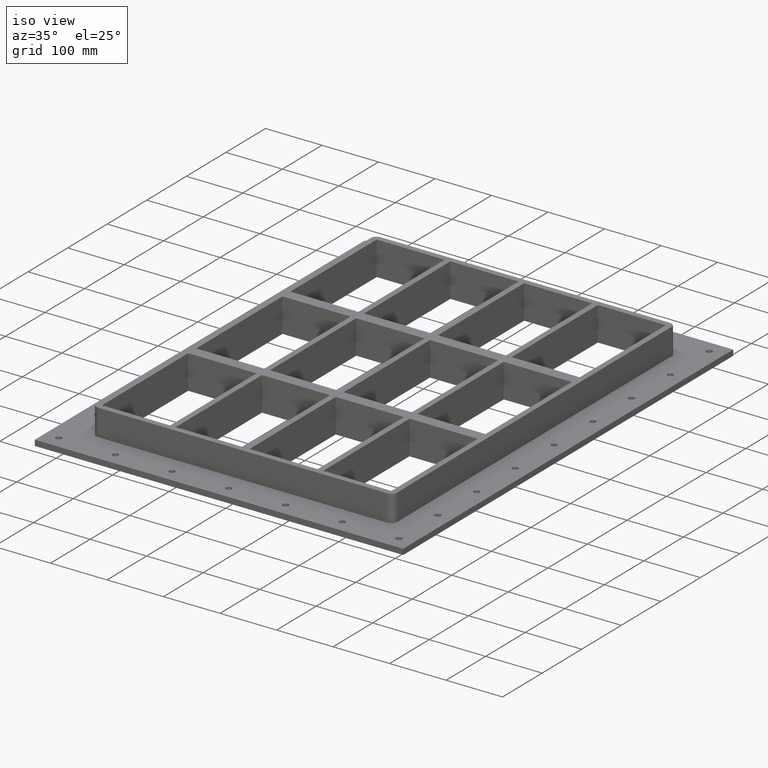
[diagram: clean part render]
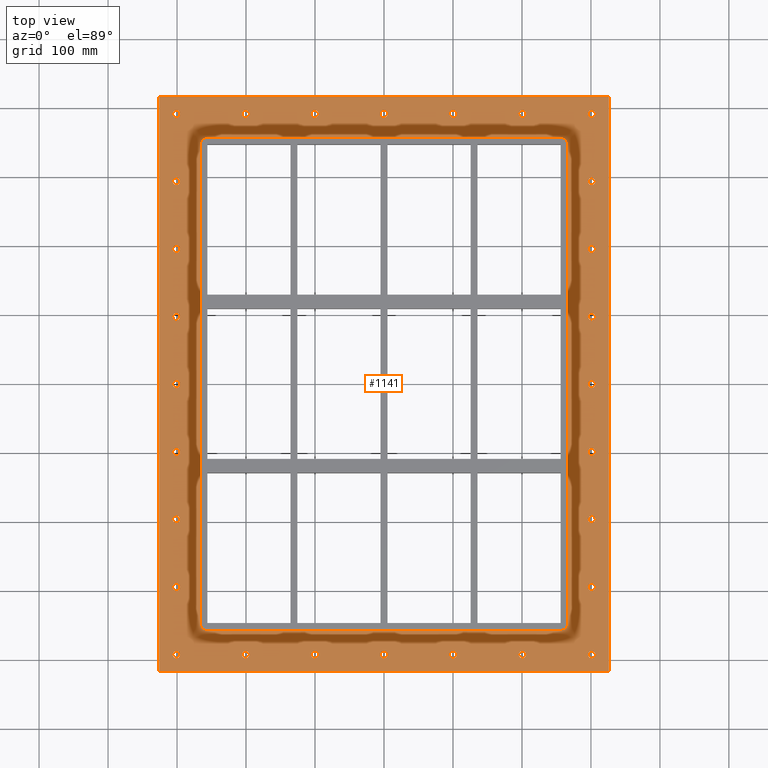
[diagram: tour spotlight — one face highlighted and labeled with its STEP entity id]
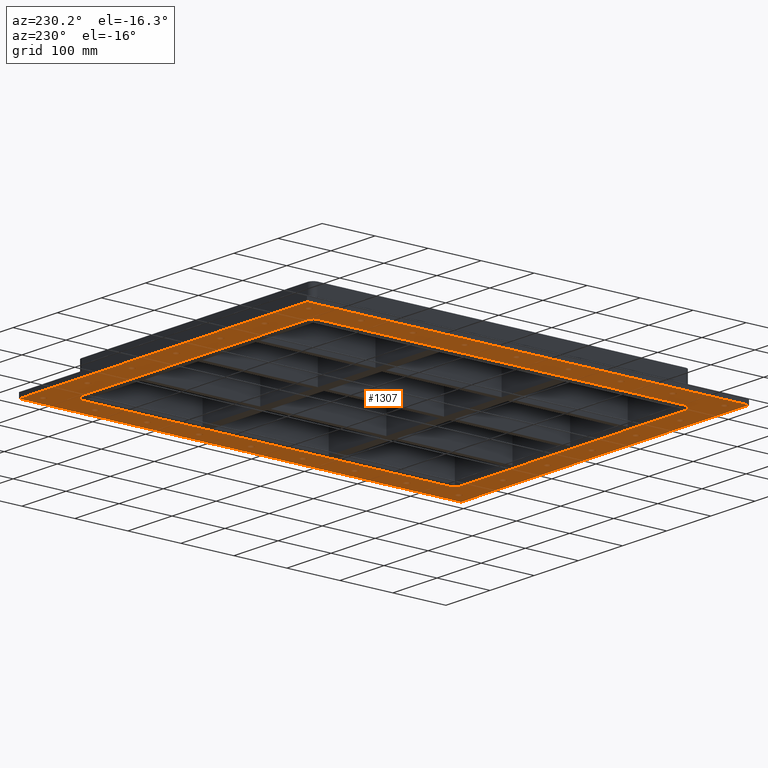
[diagram: tour spotlight — one face highlighted and labeled with its STEP entity id]
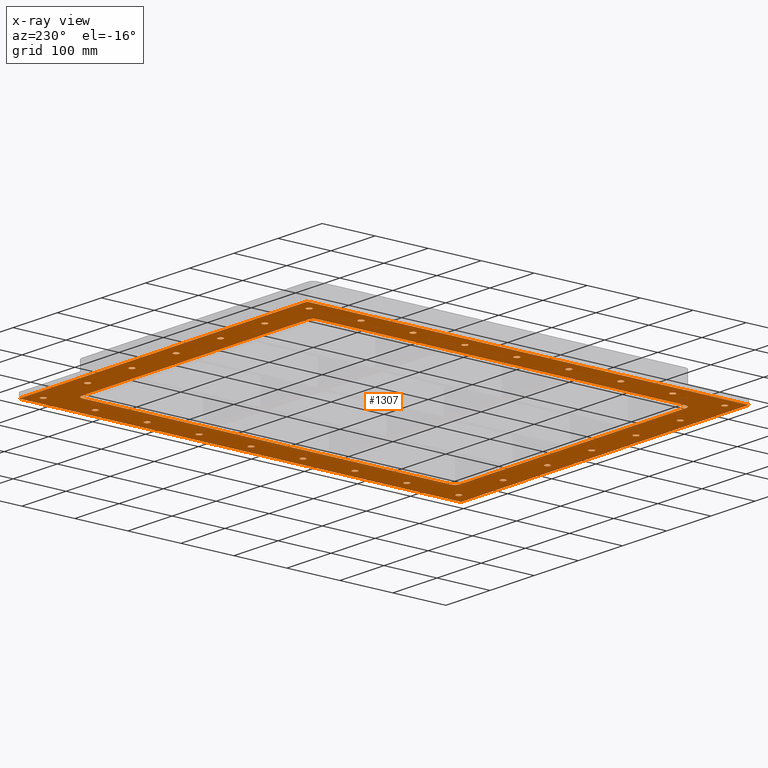
[diagram: x-ray of the same camera — body ghosted, this tour face saturated]
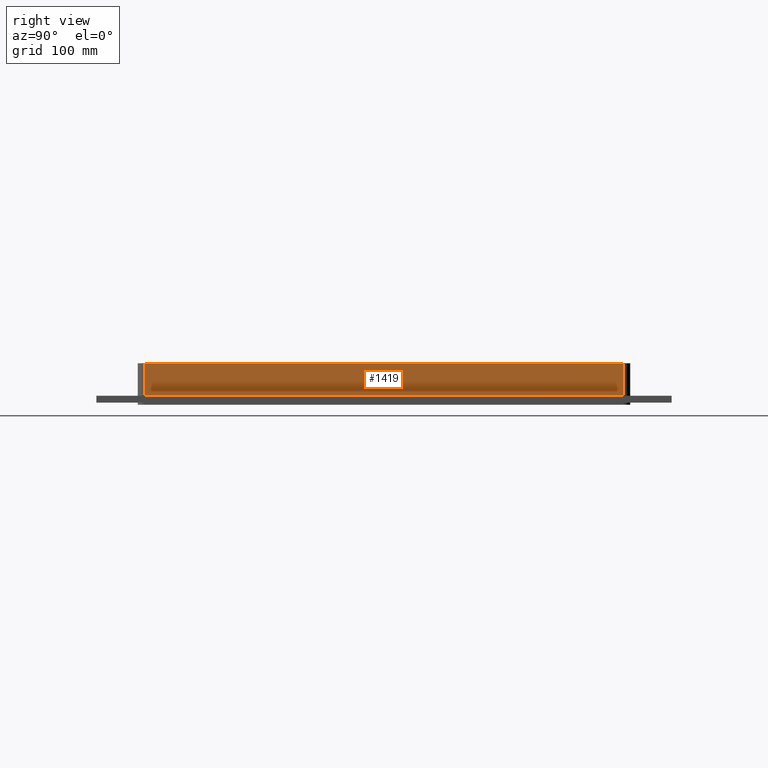
[diagram: tour spotlight — one face highlighted and labeled with its STEP entity id]
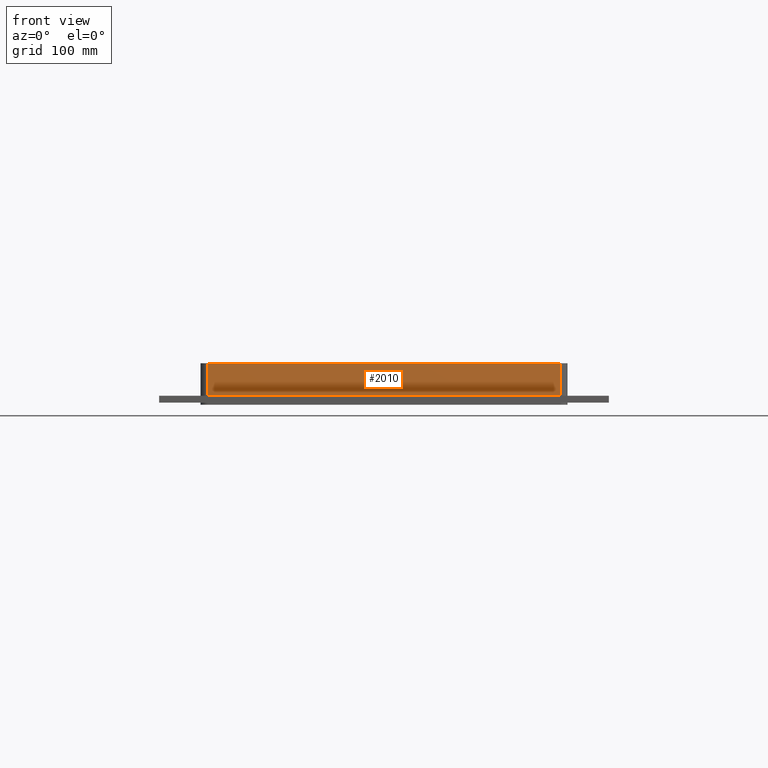
[diagram: tour spotlight — one face highlighted and labeled with its STEP entity id]
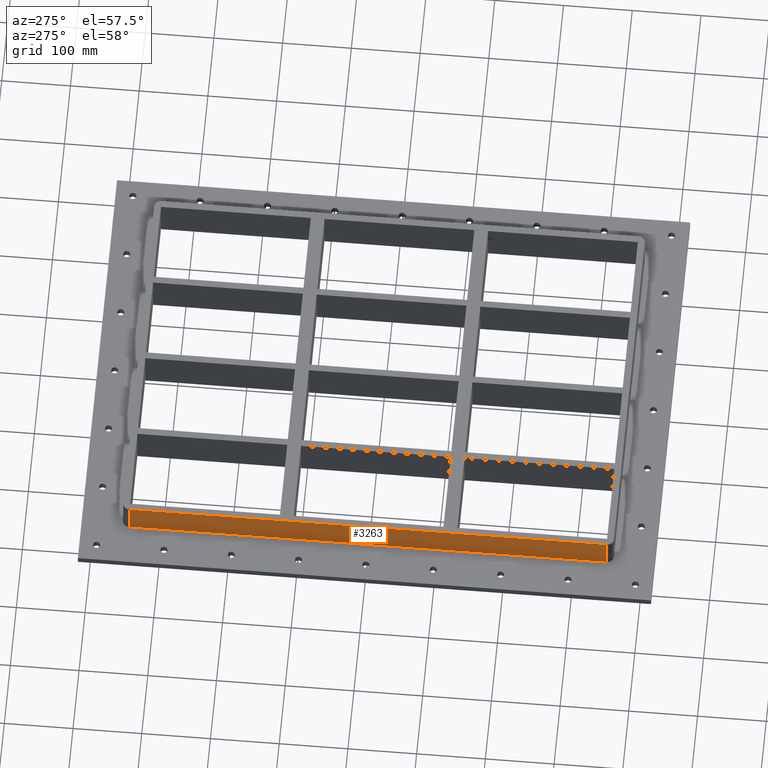
[diagram: tour spotlight — one face highlighted and labeled with its STEP entity id]
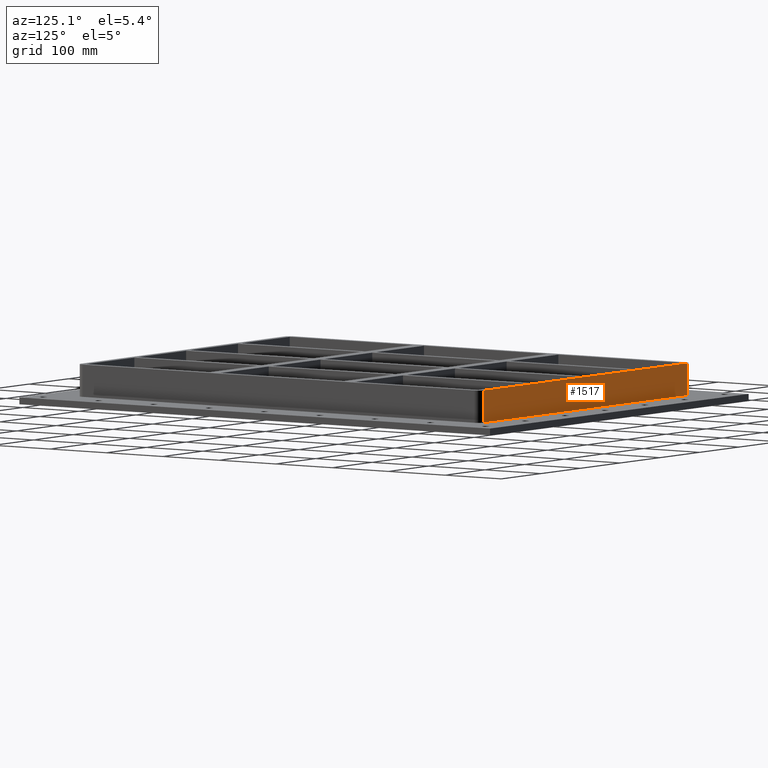
[diagram: tour spotlight — one face highlighted and labeled with its STEP entity id]
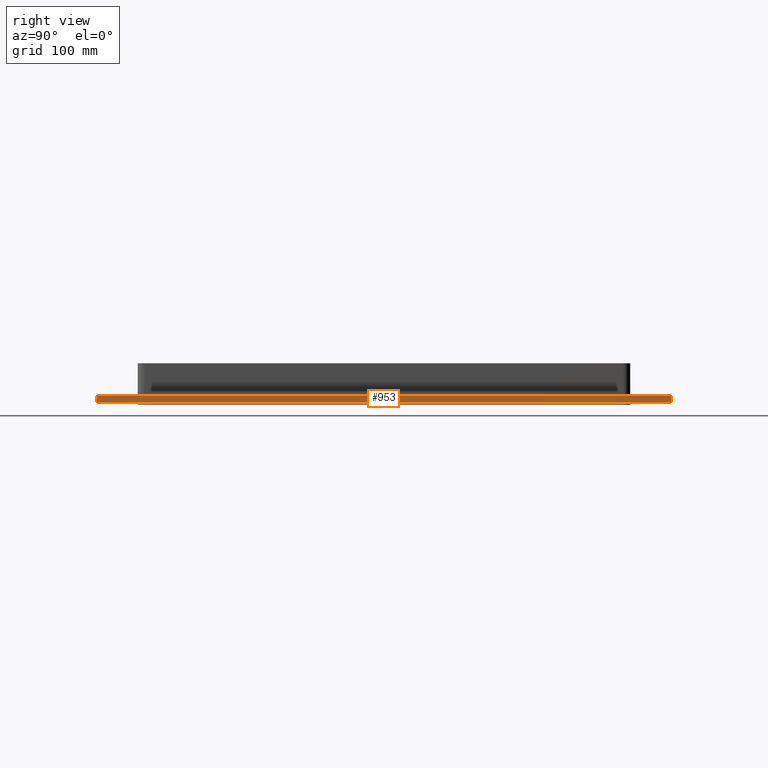
[diagram: tour spotlight — one face highlighted and labeled with its STEP entity id]
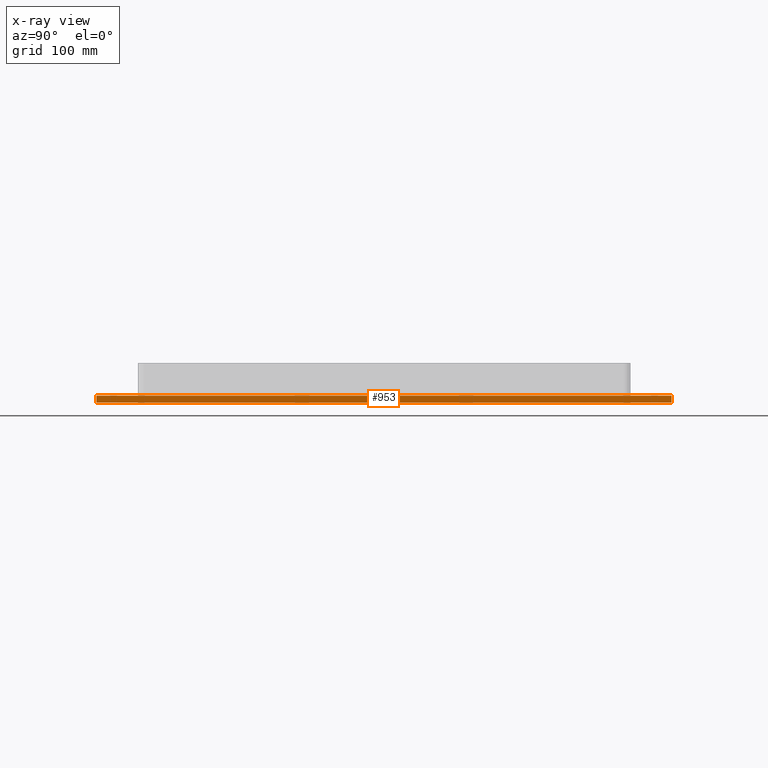
[diagram: x-ray of the same camera — body ghosted, this tour face saturated]
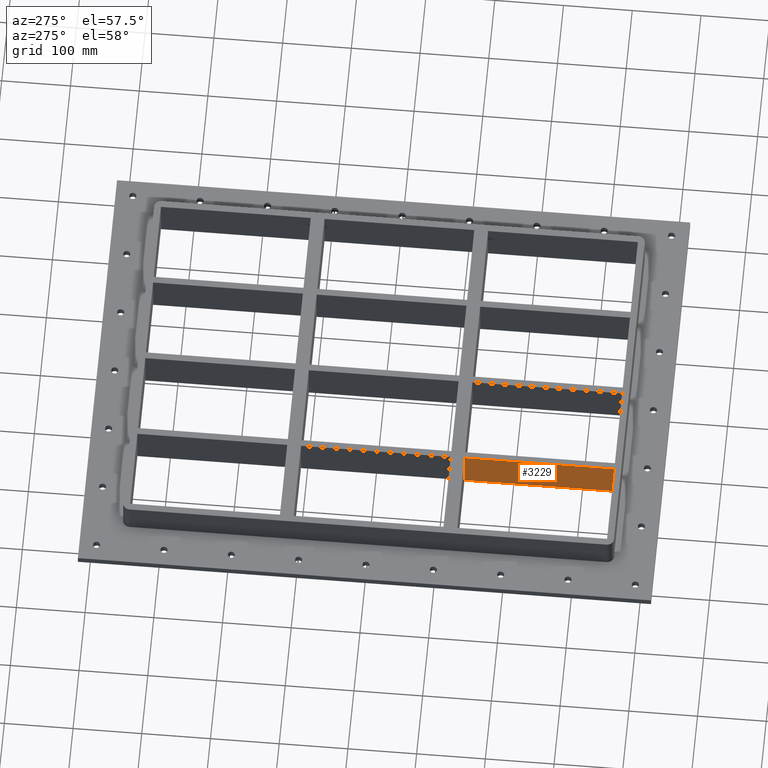
[diagram: tour spotlight — one face highlighted and labeled with its STEP entity id]
A machine part: a face-by-face anatomy tour. The part has 100 B-rep faces; the first image is the clean iso view, then the 8 largest visible faces are spotlighted one at a time (largest first), each with its STEP entity span.

Face 1 — top view, entity #1141. In plain terms, the highlighted planar face has unit normal (0, 0, 1).
Definition (entity closure, byte-faithful):
#84=CARTESIAN_POINT('',(-195.41666666666657,-392.0,-17.0));
#85=VERTEX_POINT('',#84);
#86=CARTESIAN_POINT('',(-200.66666666666657,-392.0,-17.000000000000028));
#87=DIRECTION('',(0.0,0.0,-1.0));
#88=DIRECTION('',(1.0,0.0,0.0));
#89=AXIS2_PLACEMENT_3D('',#86,#87,#88);
#90=CIRCLE('',#89,5.25);
#91=EDGE_CURVE('',#85,#85,#90,.T.);
#112=CARTESIAN_POINT('',(-95.083333333333272,-392.0,-17.0));
#113=VERTEX_POINT('',#112);
#114=CARTESIAN_POINT('',(-100.33333333333326,-392.0,-17.000000000000028));
#115=DIRECTION('',(0.0,0.0,-1.0));
#116=DIRECTION('',(1.0,0.0,0.0));
#117=AXIS2_PLACEMENT_3D('',#114,#115,#116);
#118=CIRCLE('',#117,5.25);
#119=EDGE_CURVE('',#113,#113,#118,.T.);
#140=CARTESIAN_POINT('',(5.250000000000039,-392.0,-17.0));
#141=VERTEX_POINT('',#140);
#142=CARTESIAN_POINT('',(5.329071E-014,-392.0,-17.000000000000028));
#143=DIRECTION('',(0.0,0.0,-1.0));
#144=DIRECTION('',(1.0,0.0,0.0));
#145=AXIS2_PLACEMENT_3D('',#142,#143,#144);
#146=CIRCLE('',#145,5.25);
#147=EDGE_CURVE('',#141,#141,#146,.T.);
#168=CARTESIAN_POINT('',(105.58333333333343,-392.0,-17.0));
#169=VERTEX_POINT('',#168);
#170=CARTESIAN_POINT('',(100.33333333333344,-392.0,-17.000000000000028));
#171=DIRECTION('',(0.0,0.0,-1.0));
#172=DIRECTION('',(1.0,0.0,0.0));
#173=AXIS2_PLACEMENT_3D('',#170,#171,#172);
#174=CIRCLE('',#173,5.25);
#175=EDGE_CURVE('',#169,#169,#174,.T.);
#196=CARTESIAN_POINT('',(205.91666666666674,-392.0,-17.0));
#197=VERTEX_POINT('',#196);
#198=CARTESIAN_POINT('',(200.66666666666677,-392.0,-17.000000000000028));
#199=DIRECTION('',(0.0,0.0,-1.0));
#200=DIRECTION('',(1.0,0.0,0.0));
#201=AXIS2_PLACEMENT_3D('',#198,#199,#200);
#202=CIRCLE('',#201,5.25);
#203=EDGE_CURVE('',#197,#197,#202,.T.);
#224=CARTESIAN_POINT('',(205.91666666666654,392.0,-17.0));
#225=VERTEX_POINT('',#224);
#226=CARTESIAN_POINT('',(200.66666666666657,392.0,-17.000000000000028));
#227=DIRECTION('',(0.0,0.0,-1.0));
#228=DIRECTION('',(1.0,0.0,0.0));
#229=AXIS2_PLACEMENT_3D('',#226,#227,#228);
#230=CIRCLE('',#229,5.25);
#231=EDGE_CURVE('',#225,#225,#230,.T.);
#252=CARTESIAN_POINT('',(105.58333333333324,392.0,-17.0));
#253=VERTEX_POINT('',#252);
#254=CARTESIAN_POINT('',(100.33333333333326,392.0,-17.000000000000028));
#255=DIRECTION('',(0.0,0.0,-1.0));
#256=DIRECTION('',(1.0,0.0,0.0));
#257=AXIS2_PLACEMENT_3D('',#254,#255,#256);
#258=CIRCLE('',#257,5.25);
#259=EDGE_CURVE('',#253,#253,#258,.T.);
#280=CARTESIAN_POINT('',(5.249999999999933,392.0,-17.0));
#281=VERTEX_POINT('',#280);
#282=CARTESIAN_POINT('',(-5.329071E-014,392.0,-17.000000000000028));
#283=DIRECTION('',(0.0,0.0,-1.0));
#284=DIRECTION('',(1.0,0.0,0.0));
#285=AXIS2_PLACEMENT_3D('',#282,#283,#284);
#286=CIRCLE('',#285,5.25);
#287=EDGE_CURVE('',#281,#281,#286,.T.);
#308=CARTESIAN_POINT('',(-95.083333333333456,392.0,-17.0));
#309=VERTEX_POINT('',#308);
#310=CARTESIAN_POINT('',(-100.33333333333344,392.0,-17.000000000000028));
#311=DIRECTION('',(0.0,0.0,-1.0));
#312=DIRECTION('',(1.0,0.0,0.0));
#313=AXIS2_PLACEMENT_3D('',#310,#311,#312);
#314=CIRCLE('',#313,5.25);
#315=EDGE_CURVE('',#309,#309,#314,.T.);
#336=CARTESIAN_POINT('',(-195.4166666666668,392.0,-17.0));
#337=VERTEX_POINT('',#336);
#338=CARTESIAN_POINT('',(-200.66666666666677,392.0,-17.000000000000028));
#339=DIRECTION('',(0.0,0.0,-1.0));
#340=DIRECTION('',(1.0,0.0,0.0));
#341=AXIS2_PLACEMENT_3D('',#338,#339,#340);
#342=CIRCLE('',#341,5.25);
#343=EDGE_CURVE('',#337,#337,#342,.T.);
#364=CARTESIAN_POINT('',(306.25000000000006,-294.00000000000011,-17.0));
#365=VERTEX_POINT('',#364);
#366=CARTESIAN_POINT('',(301.00000000000006,-294.00000000000011,-17.000000000000028));
#367=DIRECTION('',(0.0,0.0,-1.0));
#368=DIRECTION('',(1.0,0.0,0.0));
#369=AXIS2_PLACEMENT_3D('',#366,#367,#368);
#370=CIRCLE('',#369,5.25);
#371=EDGE_CURVE('',#365,#365,#370,.T.);
#392=CARTESIAN_POINT('',(306.25,-195.99999999999997,-17.0));
#393=VERTEX_POINT('',#392);
#394=CARTESIAN_POINT('',(301.0,-195.99999999999997,-17.000000000000028));
#395=DIRECTION('',(0.0,0.0,-1.0));
#396=DIRECTION('',(1.0,0.0,0.0));
#397=AXIS2_PLACEMENT_3D('',#394,#395,#396);
#398=CIRCLE('',#397,5.25);
#399=EDGE_CURVE('',#393,#393,#398,.T.);
#420=CARTESIAN_POINT('',(306.25,-98.0,-17.0));
#421=VERTEX_POINT('',#420);
#422=CARTESIAN_POINT('',(301.0,-98.0,-17.000000000000028));
#423=DIRECTION('',(0.0,0.0,-1.0));
#424=DIRECTION('',(1.0,0.0,0.0));
#425=AXIS2_PLACEMENT_3D('',#422,#423,#424);
#426=CIRCLE('',#425,5.25);
#427=EDGE_CURVE('',#421,#421,#426,.T.);
#448=CARTESIAN_POINT('',(306.24999999999994,0.0,-17.0));
#449=VERTEX_POINT('',#448);
#450=CARTESIAN_POINT('',(301.0,0.0,-17.000000000000028));
#451=DIRECTION('',(0.0,0.0,-1.0));
#452=DIRECTION('',(1.0,0.0,0.0));
#453=AXIS2_PLACEMENT_3D('',#450,#451,#452);
#454=CIRCLE('',#453,5.25);
#455=EDGE_CURVE('',#449,#449,#454,.T.);
#476=CARTESIAN_POINT('',(306.24999999999994,98.0,-17.0));
#477=VERTEX_POINT('',#476);
#478=CARTESIAN_POINT('',(301.0,98.0,-17.000000000000028));
#479=DIRECTION('',(0.0,0.0,-1.0));
#480=DIRECTION('',(1.0,0.0,0.0));
#481=AXIS2_PLACEMENT_3D('',#478,#479,#480);
#482=CIRCLE('',#481,5.25);
#483=EDGE_CURVE('',#477,#477,#482,.T.);
#504=CARTESIAN_POINT('',(306.24999999999994,196.0,-17.0));
#505=VERTEX_POINT('',#504);
#506=CARTESIAN_POINT('',(300.99999999999994,196.0,-17.000000000000028));
#507=DIRECTION('',(0.0,0.0,-1.0));
#508=DIRECTION('',(1.0,0.0,0.0));
#509=AXIS2_PLACEMENT_3D('',#506,#507,#508);
#510=CIRCLE('',#509,5.25);
#511=EDGE_CURVE('',#505,#505,#510,.T.);
#532=CARTESIAN_POINT('',(306.24999999999994,294.0,-17.0));
#533=VERTEX_POINT('',#532);
#534=CARTESIAN_POINT('',(300.99999999999994,294.0,-17.000000000000028));
#535=DIRECTION('',(0.0,0.0,-1.0));
#536=DIRECTION('',(1.0,0.0,0.0));
#537=AXIS2_PLACEMENT_3D('',#534,#535,#536);
#538=CIRCLE('',#537,5.25);
#539=EDGE_CURVE('',#533,#533,#538,.T.);
#560=CARTESIAN_POINT('',(-295.75000000000006,294.00000000000011,-17.0));
#561=VERTEX_POINT('',#560);
#562=CARTESIAN_POINT('',(-301.00000000000006,294.00000000000011,-17.000000000000028));
#563=DIRECTION('',(0.0,0.0,-1.0));
#564=DIRECTION('',(1.0,0.0,0.0));
#565=AXIS2_PLACEMENT_3D('',#562,#563,#564);
#566=CIRCLE('',#565,5.25);
#567=EDGE_CURVE('',#561,#561,#566,.T.);
#588=CARTESIAN_POINT('',(-295.75,195.99999999999997,-17.0));
#589=VERTEX_POINT('',#588);
#590=CARTESIAN_POINT('',(-301.0,195.99999999999997,-17.000000000000028));
#591=DIRECTION('',(0.0,0.0,-1.0));
#592=DIRECTION('',(1.0,0.0,0.0));
#593=AXIS2_PLACEMENT_3D('',#590,#591,#592);
#594=CIRCLE('',#593,5.25);
#595=EDGE_CURVE('',#589,#589,#594,.T.);
#616=CARTESIAN_POINT('',(-295.75,98.0,-17.0));
#617=VERTEX_POINT('',#616);
#618=CARTESIAN_POINT('',(-301.0,98.0,-17.000000000000028));
#619=DIRECTION('',(0.0,0.0,-1.0));
#620=DIRECTION('',(1.0,0.0,0.0));
#621=AXIS2_PLACEMENT_3D('',#618,#619,#620);
#622=CIRCLE('',#621,5.25);
#623=EDGE_CURVE('',#617,#617,#622,.T.);
#644=CARTESIAN_POINT('',(-295.75,0.0,-17.0));
#645=VERTEX_POINT('',#644);
#646=CARTESIAN_POINT('',(-301.0,0.0,-17.000000000000028));
#647=DIRECTION('',(0.0,0.0,-1.0));
#648=DIRECTION('',(1.0,0.0,0.0));
#649=AXIS2_PLACEMENT_3D('',#646,#647,#648);
#650=CIRCLE('',#649,5.25);
#651=EDGE_CURVE('',#645,#645,#650,.T.);
#672=CARTESIAN_POINT('',(-295.75,-98.0,-17.0));
#673=VERTEX_POINT('',#672);
#674=CARTESIAN_POINT('',(-301.0,-98.0,-17.000000000000028));
#675=DIRECTION('',(0.0,0.0,-1.0));
#676=DIRECTION('',(1.0,0.0,0.0));
#677=AXIS2_PLACEMENT_3D('',#674,#675,#676);
#678=CIRCLE('',#677,5.25);
#679=EDGE_CURVE('',#673,#673,#678,.T.);
#700=CARTESIAN_POINT('',(-295.74999999999994,-196.0,-17.0));
#701=VERTEX_POINT('',#700);
#702=CARTESIAN_POINT('',(-300.99999999999994,-196.0,-17.000000000000028));
#703=DIRECTION('',(0.0,0.0,-1.0));
#704=DIRECTION('',(1.0,0.0,0.0));
#705=AXIS2_PLACEMENT_3D('',#702,#703,#704);
#706=CIRCLE('',#705,5.25);
#707=EDGE_CURVE('',#701,#701,#706,.T.);
#728=CARTESIAN_POINT('',(-295.74999999999994,-294.0,-17.0));
#729=VERTEX_POINT('',#728);
#730=CARTESIAN_POINT('',(-300.99999999999994,-294.0,-17.000000000000028));
#731=DIRECTION('',(0.0,0.0,-1.0));
#732=DIRECTION('',(1.0,0.0,0.0));
#733=AXIS2_PLACEMENT_3D('',#730,#731,#732);
#734=CIRCLE('',#733,5.25);
#735=EDGE_CURVE('',#729,#729,#734,.T.);
#756=CARTESIAN_POINT('',(-295.75000000000011,392.0,-17.0));
#757=VERTEX_POINT('',#756);
#758=CARTESIAN_POINT('',(-301.00000000000011,392.0,-17.000000000000028));
#759=DIRECTION('',(0.0,0.0,-1.0));
#760=DIRECTION('',(1.0,0.0,0.0));
#761=AXIS2_PLACEMENT_3D('',#758,#759,#760);
#762=CIRCLE('',#761,5.25);
#763=EDGE_CURVE('',#757,#757,#762,.T.);
#784=CARTESIAN_POINT('',(306.24999999999994,392.0,-17.0));
#785=VERTEX_POINT('',#784);
#786=CARTESIAN_POINT('',(300.99999999999994,392.0,-17.000000000000028));
#787=DIRECTION('',(0.0,0.0,-1.0));
#788=DIRECTION('',(1.0,0.0,0.0));
#789=AXIS2_PLACEMENT_3D('',#786,#787,#788);
#790=CIRCLE('',#789,5.25);
#791=EDGE_CURVE('',#785,#785,#790,.T.);
#812=CARTESIAN_POINT('',(306.25000000000006,-392.0,-17.0));
#813=VERTEX_POINT('',#812);
#814=CARTESIAN_POINT('',(301.00000000000011,-392.0,-17.000000000000028));
#815=DIRECTION('',(0.0,0.0,-1.0));
#816=DIRECTION('',(1.0,0.0,0.0));
#817=AXIS2_PLACEMENT_3D('',#814,#815,#816);
#818=CIRCLE('',#817,5.25);
#819=EDGE_CURVE('',#813,#813,#818,.T.);
#840=CARTESIAN_POINT('',(-295.74999999999994,-392.0,-17.0));
#841=VERTEX_POINT('',#840);
#842=CARTESIAN_POINT('',(-300.99999999999994,-392.0,-17.000000000000028));
#843=DIRECTION('',(0.0,0.0,-1.0));
#844=DIRECTION('',(1.0,0.0,0.0));
#845=AXIS2_PLACEMENT_3D('',#842,#843,#844);
#846=CIRCLE('',#845,5.25);
#847=EDGE_CURVE('',#841,#841,#846,.T.);
#867=CARTESIAN_POINT('',(-325.99999999999994,-417.0,-17.0));
#868=VERTEX_POINT('',#867);
#875=CARTESIAN_POINT('',(-326.00000000000011,417.0,-17.0));
#876=VERTEX_POINT('',#875);
#877=CARTESIAN_POINT('',(-326.00000000000011,417.0,-17.0));
#878=DIRECTION('',(0.0,-1.0,0.0));
#879=VECTOR('',#878,834.0);
#880=LINE('',#877,#879);
#881=EDGE_CURVE('',#876,#868,#880,.T.);
#906=CARTESIAN_POINT('',(325.99999999999994,417.0,-17.0));
#907=VERTEX_POINT('',#906);
#908=CARTESIAN_POINT('',(325.99999999999989,417.0,-17.0));
#909=DIRECTION('',(-1.0,0.0,0.0));
#910=VECTOR('',#909,652.0);
#911=LINE('',#908,#910);
#912=EDGE_CURVE('',#907,#876,#911,.T.);
#937=CARTESIAN_POINT('',(326.00000000000011,-417.0,-17.0));
#938=VERTEX_POINT('',#937);
#939=CARTESIAN_POINT('',(326.00000000000011,-417.0,-17.0));
#940=DIRECTION('',(0.0,1.0,0.0));
#941=VECTOR('',#940,834.0);
#942=LINE('',#939,#941);
#943=EDGE_CURVE('',#938,#907,#942,.T.);
#966=CARTESIAN_POINT('',(-325.99999999999989,-417.0,-17.0));
#967=DIRECTION('',(1.0,0.0,0.0));
#968=VECTOR('',#967,652.0);
#969=LINE('',#966,#968);
#970=EDGE_CURVE('',#868,#938,#969,.T.);
#976=CARTESIAN_POINT('',(0.0,0.0,-17.0));
#977=DIRECTION('',(0.0,0.0,1.0));
#978=DIRECTION('',(1.0,0.0,0.0));
#979=AXIS2_PLACEMENT_3D('',#976,#977,#978);
#980=PLANE('',#979);
#981=ORIENTED_EDGE('',*,*,#970,.T.);
#982=ORIENTED_EDGE('',*,*,#943,.T.);
#983=ORIENTED_EDGE('',*,*,#912,.T.);
#984=ORIENTED_EDGE('',*,*,#881,.T.);
#985=EDGE_LOOP('',(#981,#982,#983,#984));
#986=FACE_OUTER_BOUND('',#985,.T.);
#987=ORIENTED_EDGE('',*,*,#91,.T.);
#988=EDGE_LOOP('',(#987));
#989=FACE_BOUND('',#988,.T.);
#990=ORIENTED_EDGE('',*,*,#119,.T.);
#991=EDGE_LOOP('',(#990));
#992=FACE_BOUND('',#991,.T.);
#993=ORIENTED_EDGE('',*,*,#147,.T.);
#994=EDGE_LOOP('',(#993));
#995=FACE_BOUND('',#994,.T.);
#996=ORIENTED_EDGE('',*,*,#175,.T.);
#997=EDGE_LOOP('',(#996));
#998=FACE_BOUND('',#997,.T.);
#999=ORIENTED_EDGE('',*,*,#203,.T.);
#1000=EDGE_LOOP('',(#999));
#1001=FACE_BOUND('',#1000,.T.);
#1002=ORIENTED_EDGE('',*,*,#231,.T.);
#1003=EDGE_LOOP('',(#1002));
#1004=FACE_BOUND('',#1003,.T.);
#1005=ORIENTED_EDGE('',*,*,#259,.T.);
#1006=EDGE_LOOP('',(#1005));
#1007=FACE_BOUND('',#1006,.T.);
#1008=ORIENTED_EDGE('',*,*,#287,.T.);
#1009=EDGE_LOOP('',(#1008));
#1010=FACE_BOUND('',#1009,.T.);
#1011=ORIENTED_EDGE('',*,*,#315,.T.);
#1012=EDGE_LOOP('',(#1011));
#1013=FACE_BOUND('',#1012,.T.);
#1014=ORIENTED_EDGE('',*,*,#343,.T.);
#1015=EDGE_LOOP('',(#1014));
#1016=FACE_BOUND('',#1015,.T.);
#1017=ORIENTED_EDGE('',*,*,#371,.T.);
#1018=EDGE_LOOP('',(#1017));
#1019=FACE_BOUND('',#1018,.T.);
#1020=ORIENTED_EDGE('',*,*,#399,.T.);
#1021=EDGE_LOOP('',(#1020));
#1022=FACE_BOUND('',#1021,.T.);
#1023=ORIENTED_EDGE('',*,*,#427,.T.);
#1024=EDGE_LOOP('',(#1023));
#1025=FACE_BOUND('',#1024,.T.);
#1026=ORIENTED_EDGE('',*,*,#455,.T.);
#1027=EDGE_LOOP('',(#1026));
#1028=FACE_BOUND('',#1027,.T.);
#1029=ORIENTED_EDGE('',*,*,#483,.T.);
#1030=EDGE_LOOP('',(#1029));
#1031=FACE_BOUND('',#1030,.T.);
#1032=ORIENTED_EDGE('',*,*,#511,.T.);
#1033=EDGE_LOOP('',(#1032));
#1034=FACE_BOUND('',#1033,.T.);
#1035=ORIENTED_EDGE('',*,*,#539,.T.);
#1036=EDGE_LOOP('',(#1035));
#1037=FACE_BOUND('',#1036,.T.);
#1038=ORIENTED_EDGE('',*,*,#567,.T.);
#1039=EDGE_LOOP('',(#1038));
#1040=FACE_BOUND('',#1039,.T.);
#1041=ORIENTED_EDGE('',*,*,#595,.T.);
#1042=EDGE_LOOP('',(#1041));
#1043=FACE_BOUND('',#1042,.T.);
#1044=ORIENTED_EDGE('',*,*,#623,.T.);
#1045=EDGE_LOOP('',(#1044));
#1046=FACE_BOUND('',#1045,.T.);
#1047=ORIENTED_EDGE('',*,*,#651,.T.);
#1048=EDGE_LOOP('',(#1047));
#1049=FACE_BOUND('',#1048,.T.);
#1050=ORIENTED_EDGE('',*,*,#679,.T.);
#1051=EDGE_LOOP('',(#1050));
#1052=FACE_BOUND('',#1051,.T.);
#1053=ORIENTED_EDGE('',*,*,#707,.T.);
#1054=EDGE_LOOP('',(#1053));
#1055=FACE_BOUND('',#1054,.T.);
#1056=ORIENTED_EDGE('',*,*,#735,.T.);
#1057=EDGE_LOOP('',(#1056));
#1058=FACE_BOUND('',#1057,.T.);
#1059=ORIENTED_EDGE('',*,*,#763,.T.);
#1060=EDGE_LOOP('',(#1059));
#1061=FACE_BOUND('',#1060,.T.);
#1062=ORIENTED_EDGE('',*,*,#791,.T.);
#1063=EDGE_LOOP('',(#1062));
#1064=FACE_BOUND('',#1063,.T.);
#1065=ORIENTED_EDGE('',*,*,#819,.T.);
#1066=EDGE_LOOP('',(#1065));
#1067=FACE_BOUND('',#1066,.T.);
#1068=ORIENTED_EDGE('',*,*,#847,.T.);
#1069=EDGE_LOOP('',(#1068));
#1070=FACE_BOUND('',#1069,.T.);
#1071=CARTESIAN_POINT('',(265.99999999999994,347.00000000000011,-17.0));
#1072=VERTEX_POINT('',#1071);
#1073=CARTESIAN_POINT('',(255.99999999999997,357.00000000000017,-17.0));
#1074=VERTEX_POINT('',#1073);
#1075=CARTESIAN_POINT('',(255.99999999999997,347.00000000000011,-17.0));
#1076=DIRECTION('',(0.0,0.0,1.0));
#1077=DIRECTION('',(0.707106781186547,0.707106781186547,0.0));
#1078=AXIS2_PLACEMENT_3D('',#1075,#1076,#1077);
#1079=CIRCLE('',#1078,9.999999999999998);
#1080=EDGE_CURVE('',#1072,#1074,#1079,.T.);
#1081=ORIENTED_EDGE('',*,*,#1080,.F.);
#1082=CARTESIAN_POINT('',(266.00000000000006,-346.99999999999989,-17.0));
#1083=VERTEX_POINT('',#1082);
#1084=CARTESIAN_POINT('',(266.00000000000017,-346.99999999999989,-17.0));
#1085=DIRECTION('',(0.0,1.0,0.0));
#1086=VECTOR('',#1085,694.0);
#1087=LINE('',#1084,#1086);
#1088=EDGE_CURVE('',#1083,#1072,#1087,.T.);
#1089=ORIENTED_EDGE('',*,*,#1088,.F.);
#1090=CARTESIAN_POINT('',(256.00000000000006,-357.0,-17.0));
#1091=VERTEX_POINT('',#1090);
#1092=CARTESIAN_POINT('',(256.00000000000011,-346.99999999999994,-17.0));
#1093=DIRECTION('',(0.0,0.0,1.0));
#1094=DIRECTION('',(0.707106781186547,-0.707106781186547,0.0));
#1095=AXIS2_PLACEMENT_3D('',#1092,#1093,#1094);
#1096=CIRCLE('',#1095,9.999999999999998);
#1097=EDGE_CURVE('',#1091,#1083,#1096,.T.);
#1098=ORIENTED_EDGE('',*,*,#1097,.F.);
#1099=CARTESIAN_POINT('',(-255.99999999999997,-357.0,-17.0));
#1100=VERTEX_POINT('',#1099);
#1101=CARTESIAN_POINT('',(-256.0,-356.99999999999994,-17.0));
#1102=DIRECTION('',(1.0,0.0,0.0));
#1103=VECTOR('',#1102,512.0);
#1104=LINE('',#1101,#1103);
#1105=EDGE_CURVE('',#1100,#1091,#1104,.T.);
#1106=ORIENTED_EDGE('',*,*,#1105,.F.);
#1107=CARTESIAN_POINT('',(-266.00000000000006,-347.00000000000017,-17.0));
#1108=VERTEX_POINT('',#1107);
#1109=CARTESIAN_POINT('',(-255.99999999999969,-346.99999999999989,-17.0));
#1110=DIRECTION('',(0.0,0.0,1.0));
#1111=DIRECTION('',(-0.707106781186547,-0.707106781186547,0.0));
#1112=AXIS2_PLACEMENT_3D('',#1109,#1110,#1111);
#1113=CIRCLE('',#1112,9.999999999999998);
#1114=EDGE_CURVE('',#1108,#1100,#1113,.T.);
#1115=ORIENTED_EDGE('',*,*,#1114,.F.);
#1116=CARTESIAN_POINT('',(-266.00000000000006,346.99999999999994,-17.0));
#1117=VERTEX_POINT('',#1116);
#1118=CARTESIAN_POINT('',(-266.00000000000011,346.99999999999994,-17.0));
#1119=DIRECTION('',(0.0,-1.0,0.0));
#1120=VECTOR('',#1119,694.00000000000023);
#1121=LINE('',#1118,#1120);
#1122=EDGE_CURVE('',#1117,#1108,#1121,.T.);
#1123=ORIENTED_EDGE('',*,*,#1122,.F.);
#1124=CARTESIAN_POINT('',(-256.00000000000006,357.0,-17.0));
#1125=VERTEX_POINT('',#1124);
#1126=CARTESIAN_POINT('',(-256.00000000000011,347.00000000000017,-17.0));
#1127=DIRECTION('',(0.0,0.0,1.0));
#1128=DIRECTION('',(-0.707106781186547,0.707106781186547,0.0));
#1129=AXIS2_PLACEMENT_3D('',#1126,#1127,#1128);
#1130=CIRCLE('',#1129,9.999999999999998);
#1131=EDGE_CURVE('',#1125,#1117,#1130,.T.);
#1132=ORIENTED_EDGE('',*,*,#1131,.F.);
#1133=CARTESIAN_POINT('',(255.99999999999997,357.00000000000011,-17.0));
#1134=DIRECTION('',(-1.0,0.0,0.0));
#1135=VECTOR('',#1134,512.0);
#1136=LINE('',#1133,#1135);
#1137=EDGE_CURVE('',#1074,#1125,#1136,.T.);
#1138=ORIENTED_EDGE('',*,*,#1137,.F.);
#1139=EDGE_LOOP('',(#1081,#1089,#1098,#1106,#1115,#1123,#1132,#1138));
#1140=FACE_BOUND('',#1139,.T.);
#1141=ADVANCED_FACE('',(#986,#989,#992,#995,#998,#1001,#1004,#1007,#1010,#1013,#1016,#1019,#1022,#1025,#1028,#1031,#1034,#1037,#1040,#1043,#1046,#1049,#1052,#1055,#1058,#1061,#1064,#1067,#1070,#1140),#980,.T.);

Face 2 — auxiliary view, entity #1307. An x-ray twin of the same camera follows (body ghosted, this face saturated) — the face is partly hidden behind the body. In plain terms, the highlighted planar face has unit normal (0, 0, 1).
Definition (entity closure, byte-faithful):
#73=CARTESIAN_POINT('',(-205.91666666666654,-392.0,-27.000000000000028));
#74=VERTEX_POINT('',#73);
#75=CARTESIAN_POINT('',(-200.66666666666657,-392.0,-27.000000000000028));
#76=DIRECTION('',(0.0,0.0,1.0));
#77=DIRECTION('',(1.0,0.0,0.0));
#78=AXIS2_PLACEMENT_3D('',#75,#76,#77);
#79=CIRCLE('',#78,5.25);
#80=EDGE_CURVE('',#74,#74,#79,.T.);
#101=CARTESIAN_POINT('',(-105.58333333333324,-392.0,-27.000000000000028));
#102=VERTEX_POINT('',#101);
#103=CARTESIAN_POINT('',(-100.33333333333326,-392.0,-27.000000000000028));
#104=DIRECTION('',(0.0,0.0,1.0));
#105=DIRECTION('',(1.0,0.0,0.0));
#106=AXIS2_PLACEMENT_3D('',#103,#104,#105);
#107=CIRCLE('',#106,5.25);
#108=EDGE_CURVE('',#102,#102,#107,.T.);
#129=CARTESIAN_POINT('',(-5.249999999999933,-392.0,-27.000000000000028));
#130=VERTEX_POINT('',#129);
#131=CARTESIAN_POINT('',(5.329071E-014,-392.0,-27.000000000000028));
#132=DIRECTION('',(0.0,0.0,1.0));
#133=DIRECTION('',(1.0,0.0,0.0));
#134=AXIS2_PLACEMENT_3D('',#131,#132,#133);
#135=CIRCLE('',#134,5.25);
#136=EDGE_CURVE('',#130,#130,#135,.T.);
#157=CARTESIAN_POINT('',(95.083333333333456,-392.0,-27.000000000000028));
#158=VERTEX_POINT('',#157);
#159=CARTESIAN_POINT('',(100.33333333333344,-392.0,-27.000000000000028));
#160=DIRECTION('',(0.0,0.0,1.0));
#161=DIRECTION('',(1.0,0.0,0.0));
#162=AXIS2_PLACEMENT_3D('',#159,#160,#161);
#163=CIRCLE('',#162,5.25);
#164=EDGE_CURVE('',#158,#158,#163,.T.);
#185=CARTESIAN_POINT('',(195.4166666666668,-392.0,-27.000000000000028));
#186=VERTEX_POINT('',#185);
#187=CARTESIAN_POINT('',(200.66666666666677,-392.0,-27.000000000000028));
#188=DIRECTION('',(0.0,0.0,1.0));
#189=DIRECTION('',(1.0,0.0,0.0));
#190=AXIS2_PLACEMENT_3D('',#187,#188,#189);
#191=CIRCLE('',#190,5.25);
#192=EDGE_CURVE('',#186,#186,#191,.T.);
#213=CARTESIAN_POINT('',(195.41666666666657,392.0,-27.000000000000028));
#214=VERTEX_POINT('',#213);
#215=CARTESIAN_POINT('',(200.66666666666657,392.0,-27.000000000000028));
#216=DIRECTION('',(0.0,0.0,1.0));
#217=DIRECTION('',(1.0,0.0,0.0));
#218=AXIS2_PLACEMENT_3D('',#215,#216,#217);
#219=CIRCLE('',#218,5.25);
#220=EDGE_CURVE('',#214,#214,#219,.T.);
#241=CARTESIAN_POINT('',(95.083333333333272,392.0,-27.000000000000028));
#242=VERTEX_POINT('',#241);
#243=CARTESIAN_POINT('',(100.33333333333326,392.0,-27.000000000000028));
#244=DIRECTION('',(0.0,0.0,1.0));
#245=DIRECTION('',(1.0,0.0,0.0));
#246=AXIS2_PLACEMENT_3D('',#243,#244,#245);
#247=CIRCLE('',#246,5.25);
#248=EDGE_CURVE('',#242,#242,#247,.T.);
#269=CARTESIAN_POINT('',(-5.250000000000039,392.0,-27.000000000000028));
#270=VERTEX_POINT('',#269);
#271=CARTESIAN_POINT('',(-5.329071E-014,392.0,-27.000000000000028));
#272=DIRECTION('',(0.0,0.0,1.0));
#273=DIRECTION('',(1.0,0.0,0.0));
#274=AXIS2_PLACEMENT_3D('',#271,#272,#273);
#275=CIRCLE('',#274,5.25);
#276=EDGE_CURVE('',#270,#270,#275,.T.);
#297=CARTESIAN_POINT('',(-105.58333333333343,392.0,-27.000000000000028));
#298=VERTEX_POINT('',#297);
#299=CARTESIAN_POINT('',(-100.33333333333344,392.0,-27.000000000000028));
#300=DIRECTION('',(0.0,0.0,1.0));
#301=DIRECTION('',(1.0,0.0,0.0));
#302=AXIS2_PLACEMENT_3D('',#299,#300,#301);
#303=CIRCLE('',#302,5.25);
#304=EDGE_CURVE('',#298,#298,#303,.T.);
#325=CARTESIAN_POINT('',(-205.91666666666674,392.0,-27.000000000000028));
#326=VERTEX_POINT('',#325);
#327=CARTESIAN_POINT('',(-200.66666666666677,392.0,-27.000000000000028));
#328=DIRECTION('',(0.0,0.0,1.0));
#329=DIRECTION('',(1.0,0.0,0.0));
#330=AXIS2_PLACEMENT_3D('',#327,#328,#329);
#331=CIRCLE('',#330,5.25);
#332=EDGE_CURVE('',#326,#326,#331,.T.);
#353=CARTESIAN_POINT('',(295.75000000000006,-294.00000000000011,-27.000000000000028));
#354=VERTEX_POINT('',#353);
#355=CARTESIAN_POINT('',(301.00000000000006,-294.00000000000011,-27.000000000000028));
#356=DIRECTION('',(0.0,0.0,1.0));
#357=DIRECTION('',(1.0,0.0,0.0));
#358=AXIS2_PLACEMENT_3D('',#355,#356,#357);
#359=CIRCLE('',#358,5.25);
#360=EDGE_CURVE('',#354,#354,#359,.T.);
#381=CARTESIAN_POINT('',(295.75,-195.99999999999997,-27.000000000000028));
#382=VERTEX_POINT('',#381);
#383=CARTESIAN_POINT('',(301.0,-195.99999999999997,-27.000000000000028));
#384=DIRECTION('',(0.0,0.0,1.0));
#385=DIRECTION('',(1.0,0.0,0.0));
#386=AXIS2_PLACEMENT_3D('',#383,#384,#385);
#387=CIRCLE('',#386,5.25);
#388=EDGE_CURVE('',#382,#382,#387,.T.);
#409=CARTESIAN_POINT('',(295.75,-98.0,-27.000000000000028));
#410=VERTEX_POINT('',#409);
#411=CARTESIAN_POINT('',(301.0,-98.0,-27.000000000000028));
#412=DIRECTION('',(0.0,0.0,1.0));
#413=DIRECTION('',(1.0,0.0,0.0));
#414=AXIS2_PLACEMENT_3D('',#411,#412,#413);
#415=CIRCLE('',#414,5.25);
#416=EDGE_CURVE('',#410,#410,#415,.T.);
#437=CARTESIAN_POINT('',(295.75,0.0,-27.000000000000028));
#438=VERTEX_POINT('',#437);
#439=CARTESIAN_POINT('',(301.0,0.0,-27.000000000000028));
#440=DIRECTION('',(0.0,0.0,1.0));
#441=DIRECTION('',(1.0,0.0,0.0));
#442=AXIS2_PLACEMENT_3D('',#439,#440,#441);
#443=CIRCLE('',#442,5.25);
#444=EDGE_CURVE('',#438,#438,#443,.T.);
#465=CARTESIAN_POINT('',(295.75,98.0,-27.000000000000028));
#466=VERTEX_POINT('',#465);
#467=CARTESIAN_POINT('',(301.0,98.0,-27.000000000000028));
#468=DIRECTION('',(0.0,0.0,1.0));
#469=DIRECTION('',(1.0,0.0,0.0));
#470=AXIS2_PLACEMENT_3D('',#467,#468,#469);
#471=CIRCLE('',#470,5.25);
#472=EDGE_CURVE('',#466,#466,#471,.T.);
#493=CARTESIAN_POINT('',(295.74999999999994,196.0,-27.000000000000028));
#494=VERTEX_POINT('',#493);
#495=CARTESIAN_POINT('',(300.99999999999994,196.0,-27.000000000000028));
#496=DIRECTION('',(0.0,0.0,1.0));
#497=DIRECTION('',(1.0,0.0,0.0));
#498=AXIS2_PLACEMENT_3D('',#495,#496,#497);
#499=CIRCLE('',#498,5.25);
#500=EDGE_CURVE('',#494,#494,#499,.T.);
#521=CARTESIAN_POINT('',(295.74999999999994,294.0,-27.000000000000028));
#522=VERTEX_POINT('',#521);
#523=CARTESIAN_POINT('',(300.99999999999994,294.0,-27.000000000000028));
#524=DIRECTION('',(0.0,0.0,1.0));
#525=DIRECTION('',(1.0,0.0,0.0));
#526=AXIS2_PLACEMENT_3D('',#523,#524,#525);
#527=CIRCLE('',#526,5.25);
#528=EDGE_CURVE('',#522,#522,#527,.T.);
#549=CARTESIAN_POINT('',(-306.25000000000006,294.00000000000011,-27.000000000000028));
#550=VERTEX_POINT('',#549);
#551=CARTESIAN_POINT('',(-301.00000000000006,294.00000000000011,-27.000000000000028));
#552=DIRECTION('',(0.0,0.0,1.0));
#553=DIRECTION('',(1.0,0.0,0.0));
#554=AXIS2_PLACEMENT_3D('',#551,#552,#553);
#555=CIRCLE('',#554,5.25);
#556=EDGE_CURVE('',#550,#550,#555,.T.);
#577=CARTESIAN_POINT('',(-306.25,195.99999999999997,-27.000000000000028));
#578=VERTEX_POINT('',#577);
#579=CARTESIAN_POINT('',(-301.0,195.99999999999997,-27.000000000000028));
#580=DIRECTION('',(0.0,0.0,1.0));
#581=DIRECTION('',(1.0,0.0,0.0));
#582=AXIS2_PLACEMENT_3D('',#579,#580,#581);
#583=CIRCLE('',#582,5.25);
#584=EDGE_CURVE('',#578,#578,#583,.T.);
#605=CARTESIAN_POINT('',(-306.25,98.0,-27.000000000000028));
#606=VERTEX_POINT('',#605);
#607=CARTESIAN_POINT('',(-301.0,98.0,-27.000000000000028));
#608=DIRECTION('',(0.0,0.0,1.0));
#609=DIRECTION('',(1.0,0.0,0.0));
#610=AXIS2_PLACEMENT_3D('',#607,#608,#609);
#611=CIRCLE('',#610,5.25);
#612=EDGE_CURVE('',#606,#606,#611,.T.);
#633=CARTESIAN_POINT('',(-306.24999999999994,0.0,-27.000000000000028));
#634=VERTEX_POINT('',#633);
#635=CARTESIAN_POINT('',(-301.0,0.0,-27.000000000000028));
#636=DIRECTION('',(0.0,0.0,1.0));
#637=DIRECTION('',(1.0,0.0,0.0));
#638=AXIS2_PLACEMENT_3D('',#635,#636,#637);
#639=CIRCLE('',#638,5.25);
#640=EDGE_CURVE('',#634,#634,#639,.T.);
#661=CARTESIAN_POINT('',(-306.24999999999994,-98.0,-27.000000000000028));
#662=VERTEX_POINT('',#661);
#663=CARTESIAN_POINT('',(-301.0,-98.0,-27.000000000000028));
#664=DIRECTION('',(0.0,0.0,1.0));
#665=DIRECTION('',(1.0,0.0,0.0));
#666=AXIS2_PLACEMENT_3D('',#663,#664,#665);
#667=CIRCLE('',#666,5.25);
#668=EDGE_CURVE('',#662,#662,#667,.T.);
#689=CARTESIAN_POINT('',(-306.24999999999994,-196.0,-27.000000000000028));
#690=VERTEX_POINT('',#689);
#691=CARTESIAN_POINT('',(-300.99999999999994,-196.0,-27.000000000000028));
#692=DIRECTION('',(0.0,0.0,1.0));
#693=DIRECTION('',(1.0,0.0,0.0));
#694=AXIS2_PLACEMENT_3D('',#691,#692,#693);
#695=CIRCLE('',#694,5.25);
#696=EDGE_CURVE('',#690,#690,#695,.T.);
#717=CARTESIAN_POINT('',(-306.24999999999994,-294.0,-27.000000000000028));
#718=VERTEX_POINT('',#717);
#719=CARTESIAN_POINT('',(-300.99999999999994,-294.0,-27.000000000000028));
#720=DIRECTION('',(0.0,0.0,1.0));
#721=DIRECTION('',(1.0,0.0,0.0));
#722=AXIS2_PLACEMENT_3D('',#719,#720,#721);
#723=CIRCLE('',#722,5.25);
#724=EDGE_CURVE('',#718,#718,#723,.T.);
#745=CARTESIAN_POINT('',(-306.25000000000006,392.0,-27.000000000000028));
#746=VERTEX_POINT('',#745);
#747=CARTESIAN_POINT('',(-301.00000000000011,392.0,-27.000000000000028));
#748=DIRECTION('',(0.0,0.0,1.0));
#749=DIRECTION('',(1.0,0.0,0.0));
#750=AXIS2_PLACEMENT_3D('',#747,#748,#749);
#751=CIRCLE('',#750,5.25);
#752=EDGE_CURVE('',#746,#746,#751,.T.);
#773=CARTESIAN_POINT('',(295.74999999999994,392.0,-27.000000000000028));
#774=VERTEX_POINT('',#773);
#775=CARTESIAN_POINT('',(300.99999999999994,392.0,-27.000000000000028));
#776=DIRECTION('',(0.0,0.0,1.0));
#777=DIRECTION('',(1.0,0.0,0.0));
#778=AXIS2_PLACEMENT_3D('',#775,#776,#777);
#779=CIRCLE('',#778,5.25);
#780=EDGE_CURVE('',#774,#774,#779,.T.);
#801=CARTESIAN_POINT('',(295.75000000000011,-392.0,-27.000000000000028));
#802=VERTEX_POINT('',#801);
#803=CARTESIAN_POINT('',(301.00000000000011,-392.0,-27.000000000000028));
#804=DIRECTION('',(0.0,0.0,1.0));
#805=DIRECTION('',(1.0,0.0,0.0));
#806=AXIS2_PLACEMENT_3D('',#803,#804,#805);
#807=CIRCLE('',#806,5.25);
#808=EDGE_CURVE('',#802,#802,#807,.T.);
#829=CARTESIAN_POINT('',(-306.24999999999994,-392.0,-27.000000000000028));
#830=VERTEX_POINT('',#829);
#831=CARTESIAN_POINT('',(-300.99999999999994,-392.0,-27.000000000000028));
#832=DIRECTION('',(0.0,0.0,1.0));
#833=DIRECTION('',(1.0,0.0,0.0));
#834=AXIS2_PLACEMENT_3D('',#831,#832,#833);
#835=CIRCLE('',#834,5.25);
#836=EDGE_CURVE('',#830,#830,#835,.T.);
#857=CARTESIAN_POINT('',(-325.99999999999994,-417.0,-27.0));
#858=VERTEX_POINT('',#857);
#859=CARTESIAN_POINT('',(-326.00000000000011,417.0,-27.0));
#860=VERTEX_POINT('',#859);
#861=CARTESIAN_POINT('',(-325.99999999999994,-417.0,-27.0));
#862=DIRECTION('',(0.0,1.0,0.0));
#863=VECTOR('',#862,834.0);
#864=LINE('',#861,#863);
#865=EDGE_CURVE('',#858,#860,#864,.T.);
#897=CARTESIAN_POINT('',(325.99999999999994,417.0,-27.0));
#898=VERTEX_POINT('',#897);
#899=CARTESIAN_POINT('',(-326.00000000000011,417.0,-27.0));
#900=DIRECTION('',(1.0,0.0,0.0));
#901=VECTOR('',#900,652.0);
#902=LINE('',#899,#901);
#903=EDGE_CURVE('',#860,#898,#902,.T.);
#928=CARTESIAN_POINT('',(326.00000000000011,-417.0,-27.0));
#929=VERTEX_POINT('',#928);
#930=CARTESIAN_POINT('',(325.99999999999994,417.0,-27.0));
#931=DIRECTION('',(0.0,-1.0,0.0));
#932=VECTOR('',#931,834.0);
#933=LINE('',#930,#932);
#934=EDGE_CURVE('',#898,#929,#933,.T.);
#959=CARTESIAN_POINT('',(326.00000000000011,-417.0,-27.0));
#960=DIRECTION('',(-1.0,0.0,0.0));
#961=VECTOR('',#960,652.0);
#962=LINE('',#959,#961);
#963=EDGE_CURVE('',#929,#858,#962,.T.);
#1142=CARTESIAN_POINT('',(0.0,0.0,-27.0));
#1143=DIRECTION('',(0.0,0.0,1.0));
#1144=DIRECTION('',(1.0,0.0,0.0));
#1145=AXIS2_PLACEMENT_3D('',#1142,#1143,#1144);
#1146=PLANE('',#1145);
#1147=ORIENTED_EDGE('',*,*,#963,.T.);
#1148=ORIENTED_EDGE('',*,*,#865,.T.);
#1149=ORIENTED_EDGE('',*,*,#903,.T.);
#1150=ORIENTED_EDGE('',*,*,#934,.T.);
#1151=EDGE_LOOP('',(#1147,#1148,#1149,#1150));
#1152=FACE_OUTER_BOUND('',#1151,.T.);
#1153=ORIENTED_EDGE('',*,*,#80,.T.);
#1154=EDGE_LOOP('',(#1153));
#1155=FACE_BOUND('',#1154,.T.);
#1156=ORIENTED_EDGE('',*,*,#108,.T.);
#1157=EDGE_LOOP('',(#1156));
#1158=FACE_BOUND('',#1157,.T.);
#1159=ORIENTED_EDGE('',*,*,#136,.T.);
#1160=EDGE_LOOP('',(#1159));
#1161=FACE_BOUND('',#1160,.T.);
#1162=ORIENTED_EDGE('',*,*,#164,.T.);
#1163=EDGE_LOOP('',(#1162));
#1164=FACE_BOUND('',#1163,.T.);
#1165=ORIENTED_EDGE('',*,*,#192,.T.);
#1166=EDGE_LOOP('',(#1165));
#1167=FACE_BOUND('',#1166,.T.);
#1168=ORIENTED_EDGE('',*,*,#220,.T.);
#1169=EDGE_LOOP('',(#1168));
#1170=FACE_BOUND('',#1169,.T.);
#1171=ORIENTED_EDGE('',*,*,#248,.T.);
#1172=EDGE_LOOP('',(#1171));
#1173=FACE_BOUND('',#1172,.T.);
#1174=ORIENTED_EDGE('',*,*,#276,.T.);
#1175=EDGE_LOOP('',(#1174));
#1176=FACE_BOUND('',#1175,.T.);
#1177=ORIENTED_EDGE('',*,*,#304,.T.);
#1178=EDGE_LOOP('',(#1177));
#1179=FACE_BOUND('',#1178,.T.);
#1180=ORIENTED_EDGE('',*,*,#332,.T.);
#1181=EDGE_LOOP('',(#1180));
#1182=FACE_BOUND('',#1181,.T.);
#1183=ORIENTED_EDGE('',*,*,#360,.T.);
#1184=EDGE_LOOP('',(#1183));
#1185=FACE_BOUND('',#1184,.T.);
#1186=ORIENTED_EDGE('',*,*,#388,.T.);
#1187=EDGE_LOOP('',(#1186));
#1188=FACE_BOUND('',#1187,.T.);
#1189=ORIENTED_EDGE('',*,*,#416,.T.);
#1190=EDGE_LOOP('',(#1189));
#1191=FACE_BOUND('',#1190,.T.);
#1192=ORIENTED_EDGE('',*,*,#444,.T.);
#1193=EDGE_LOOP('',(#1192));
#1194=FACE_BOUND('',#1193,.T.);
#1195=ORIENTED_EDGE('',*,*,#472,.T.);
#1196=EDGE_LOOP('',(#1195));
#1197=FACE_BOUND('',#1196,.T.);
#1198=ORIENTED_EDGE('',*,*,#500,.T.);
#1199=EDGE_LOOP('',(#1198));
#1200=FACE_BOUND('',#1199,.T.);
#1201=ORIENTED_EDGE('',*,*,#528,.T.);
#1202=EDGE_LOOP('',(#1201));
#1203=FACE_BOUND('',#1202,.T.);
#1204=ORIENTED_EDGE('',*,*,#556,.T.);
#1205=EDGE_LOOP('',(#1204));
#1206=FACE_BOUND('',#1205,.T.);
#1207=ORIENTED_EDGE('',*,*,#584,.T.);
#1208=EDGE_LOOP('',(#1207));
#1209=FACE_BOUND('',#1208,.T.);
#1210=ORIENTED_EDGE('',*,*,#612,.T.);
#1211=EDGE_LOOP('',(#1210));
#1212=FACE_BOUND('',#1211,.T.);
#1213=ORIENTED_EDGE('',*,*,#640,.T.);
#1214=EDGE_LOOP('',(#1213));
#1215=FACE_BOUND('',#1214,.T.);
#1216=ORIENTED_EDGE('',*,*,#668,.T.);
#1217=EDGE_LOOP('',(#1216));
#1218=FACE_BOUND('',#1217,.T.);
#1219=ORIENTED_EDGE('',*,*,#696,.T.);
#1220=EDGE_LOOP('',(#1219));
#1221=FACE_BOUND('',#1220,.T.);
#1222=ORIENTED_EDGE('',*,*,#724,.T.);
#1223=EDGE_LOOP('',(#1222));
#1224=FACE_BOUND('',#1223,.T.);
#1225=ORIENTED_EDGE('',*,*,#752,.T.);
#1226=EDGE_LOOP('',(#1225));
#1227=FACE_BOUND('',#1226,.T.);
#1228=ORIENTED_EDGE('',*,*,#780,.T.);
#1229=EDGE_LOOP('',(#1228));
#1230=FACE_BOUND('',#1229,.T.);
#1231=ORIENTED_EDGE('',*,*,#808,.T.);
#1232=EDGE_LOOP('',(#1231));
#1233=FACE_BOUND('',#1232,.T.);
#1234=ORIENTED_EDGE('',*,*,#836,.T.);
#1235=EDGE_LOOP('',(#1234));
#1236=FACE_BOUND('',#1235,.T.);
#1237=CARTESIAN_POINT('',(255.99999999999997,357.00000000000017,-27.0));
#1238=VERTEX_POINT('',#1237);
#1239=CARTESIAN_POINT('',(265.99999999999994,347.00000000000011,-27.0));
#1240=VERTEX_POINT('',#1239);
#1241=CARTESIAN_POINT('',(255.99999999999997,347.00000000000011,-27.0));
#1242=DIRECTION('',(0.0,0.0,-1.0));
#1243=DIRECTION('',(0.707106781186547,0.707106781186547,0.0));
#1244=AXIS2_PLACEMENT_3D('',#1241,#1242,#1243);
#1245=CIRCLE('',#1244,9.999999999999998);
#1246=EDGE_CURVE('',#1238,#1240,#1245,.T.);
#1247=ORIENTED_EDGE('',*,*,#1246,.F.);
#1248=CARTESIAN_POINT('',(-256.00000000000006,357.0,-27.0));
#1249=VERTEX_POINT('',#1248);
#1250=CARTESIAN_POINT('',(-256.00000000000006,357.00000000000017,-27.0));
#1251=DIRECTION('',(1.0,0.0,0.0));
#1252=VECTOR('',#1251,512.0);
#1253=LINE('',#1250,#1252);
#1254=EDGE_CURVE('',#1249,#1238,#1253,.T.);
#1255=ORIENTED_EDGE('',*,*,#1254,.F.);
#1256=CARTESIAN_POINT('',(-266.0,346.99999999999994,-27.0));
#1257=VERTEX_POINT('',#1256);
#1258=CARTESIAN_POINT('',(-256.00000000000011,347.00000000000017,-27.0));
#1259=DIRECTION('',(0.0,0.0,-1.0));
#1260=DIRECTION('',(-0.707106781186547,0.707106781186547,0.0));
#1261=AXIS2_PLACEMENT_3D('',#1258,#1259,#1260);
#1262=CIRCLE('',#1261,9.999999999999998);
#1263=EDGE_CURVE('',#1257,#1249,#1262,.T.);
#1264=ORIENTED_EDGE('',*,*,#1263,.F.);
#1265=CARTESIAN_POINT('',(-266.0,-347.00000000000011,-27.0));
#1266=VERTEX_POINT('',#1265);
#1267=CARTESIAN_POINT('',(-265.99999999999972,-347.00000000000011,-27.0));
#1268=DIRECTION('',(0.0,1.0,0.0));
#1269=VECTOR('',#1268,694.0);
#1270=LINE('',#1267,#1269);
#1271=EDGE_CURVE('',#1266,#1257,#1270,.T.);
#1272=ORIENTED_EDGE('',*,*,#1271,.F.);
#1273=CARTESIAN_POINT('',(-255.99999999999997,-357.0,-27.0));
#1274=VERTEX_POINT('',#1273);
#1275=CARTESIAN_POINT('',(-255.99999999999969,-346.99999999999989,-27.0));
#1276=DIRECTION('',(0.0,0.0,-1.0));
#1277=DIRECTION('',(-0.707106781186547,-0.707106781186547,0.0));
#1278=AXIS2_PLACEMENT_3D('',#1275,#1276,#1277);
#1279=CIRCLE('',#1278,9.999999999999998);
#1280=EDGE_CURVE('',#1274,#1266,#1279,.T.);
#1281=ORIENTED_EDGE('',*,*,#1280,.F.);
#1282=CARTESIAN_POINT('',(256.00000000000006,-357.0,-27.0));
#1283=VERTEX_POINT('',#1282);
#1284=CARTESIAN_POINT('',(256.0,-356.99999999999994,-27.0));
#1285=DIRECTION('',(-1.0,0.0,0.0));
#1286=VECTOR('',#1285,512.0);
#1287=LINE('',#1284,#1286);
#1288=EDGE_CURVE('',#1283,#1274,#1287,.T.);
#1289=ORIENTED_EDGE('',*,*,#1288,.F.);
#1290=CARTESIAN_POINT('',(266.00000000000006,-346.99999999999994,-27.0));
#1291=VERTEX_POINT('',#1290);
#1292=CARTESIAN_POINT('',(256.00000000000011,-346.99999999999994,-27.0));
#1293=DIRECTION('',(0.0,0.0,-1.0));
#1294=DIRECTION('',(0.707106781186547,-0.707106781186547,0.0));
#1295=AXIS2_PLACEMENT_3D('',#1292,#1293,#1294);
#1296=CIRCLE('',#1295,9.999999999999998);
#1297=EDGE_CURVE('',#1291,#1283,#1296,.T.);
#1298=ORIENTED_EDGE('',*,*,#1297,.F.);
#1299=CARTESIAN_POINT('',(266.0,347.00000000000006,-27.0));
#1300=DIRECTION('',(0.0,-1.0,0.0));
#1301=VECTOR('',#1300,694.0);
#1302=LINE('',#1299,#1301);
#1303=EDGE_CURVE('',#1240,#1291,#1302,.T.);
#1304=ORIENTED_EDGE('',*,*,#1303,.F.);
#1305=EDGE_LOOP('',(#1247,#1255,#1264,#1272,#1281,#1289,#1298,#1304));
#1306=FACE_BOUND('',#1305,.T.);
#1307=ADVANCED_FACE('',(#1152,#1155,#1158,#1161,#1164,#1167,#1170,#1173,#1176,#1179,#1182,#1185,#1188,#1191,#1194,#1197,#1200,#1203,#1206,#1209,#1212,#1215,#1218,#1221,#1224,#1227,#1230,#1233,#1236,#1306),#1146,.F.);

Face 3 — right view, entity #1419. In plain terms, the highlighted planar face has unit normal (1, 0, 0).
Definition (entity closure, byte-faithful):
#1071=CARTESIAN_POINT('',(265.99999999999994,347.00000000000011,-17.0));
#1072=VERTEX_POINT('',#1071);
#1082=CARTESIAN_POINT('',(266.00000000000006,-346.99999999999989,-17.0));
#1083=VERTEX_POINT('',#1082);
#1084=CARTESIAN_POINT('',(266.00000000000017,-346.99999999999989,-17.0));
#1085=DIRECTION('',(0.0,1.0,0.0));
#1086=VECTOR('',#1085,694.0);
#1087=LINE('',#1084,#1086);
#1088=EDGE_CURVE('',#1083,#1072,#1087,.T.);
#1346=CARTESIAN_POINT('',(266.00000000000011,-346.99999999999994,30.0));
#1347=VERTEX_POINT('',#1346);
#1348=CARTESIAN_POINT('',(266.00000000000011,-346.99999999999994,-17.0));
#1349=DIRECTION('',(0.0,0.0,1.0));
#1350=VECTOR('',#1349,47.0);
#1351=LINE('',#1348,#1350);
#1352=EDGE_CURVE('',#1083,#1347,#1351,.T.);
#1396=CARTESIAN_POINT('',(266.00000000000011,-356.99999999999994,0.0));
#1397=DIRECTION('',(1.0,0.0,0.0));
#1398=DIRECTION('',(0.0,1.0,0.0));
#1399=AXIS2_PLACEMENT_3D('',#1396,#1397,#1398);
#1400=PLANE('',#1399);
#1401=ORIENTED_EDGE('',*,*,#1088,.T.);
#1402=CARTESIAN_POINT('',(266.0,347.00000000000011,30.0));
#1403=VERTEX_POINT('',#1402);
#1404=CARTESIAN_POINT('',(266.0,347.00000000000011,30.0));
#1405=DIRECTION('',(0.0,0.0,-1.0));
#1406=VECTOR('',#1405,47.0);
#1407=LINE('',#1404,#1406);
#1408=EDGE_CURVE('',#1403,#1072,#1407,.T.);
#1409=ORIENTED_EDGE('',*,*,#1408,.F.);
#1410=CARTESIAN_POINT('',(266.00000000000011,-346.99999999999994,30.0));
#1411=DIRECTION('',(0.0,1.0,0.0));
#1412=VECTOR('',#1411,694.0);
#1413=LINE('',#1410,#1412);
#1414=EDGE_CURVE('',#1347,#1403,#1413,.T.);
#1415=ORIENTED_EDGE('',*,*,#1414,.F.);
#1416=ORIENTED_EDGE('',*,*,#1352,.F.);
#1417=EDGE_LOOP('',(#1401,#1409,#1415,#1416));
#1418=FACE_OUTER_BOUND('',#1417,.T.);
#1419=ADVANCED_FACE('',(#1418),#1400,.T.);

Face 4 — front view, entity #2010. In plain terms, the highlighted planar face has unit normal (0, -1, 0).
Definition (entity closure, byte-faithful):
#1090=CARTESIAN_POINT('',(256.00000000000006,-357.0,-17.0));
#1091=VERTEX_POINT('',#1090);
#1099=CARTESIAN_POINT('',(-255.99999999999997,-357.0,-17.0));
#1100=VERTEX_POINT('',#1099);
#1101=CARTESIAN_POINT('',(-256.0,-356.99999999999994,-17.0));
#1102=DIRECTION('',(1.0,0.0,0.0));
#1103=VECTOR('',#1102,512.0);
#1104=LINE('',#1101,#1103);
#1105=EDGE_CURVE('',#1100,#1091,#1104,.T.);
#1354=CARTESIAN_POINT('',(256.00000000000011,-356.99999999999994,30.0));
#1355=VERTEX_POINT('',#1354);
#1363=CARTESIAN_POINT('',(256.00000000000011,-356.99999999999994,30.0));
#1364=DIRECTION('',(0.0,0.0,-1.0));
#1365=VECTOR('',#1364,47.0);
#1366=LINE('',#1363,#1365);
#1367=EDGE_CURVE('',#1355,#1091,#1366,.T.);
#1987=CARTESIAN_POINT('',(-265.99999999999972,-356.99999999999994,0.0));
#1988=DIRECTION('',(0.0,-1.0,0.0));
#1989=DIRECTION('',(1.0,0.0,0.0));
#1990=AXIS2_PLACEMENT_3D('',#1987,#1988,#1989);
#1991=PLANE('',#1990);
#1992=ORIENTED_EDGE('',*,*,#1105,.T.);
#1993=ORIENTED_EDGE('',*,*,#1367,.F.);
#1994=CARTESIAN_POINT('',(-255.99999999999969,-356.99999999999994,30.0));
#1995=VERTEX_POINT('',#1994);
#1996=CARTESIAN_POINT('',(-255.99999999999972,-356.99999999999994,30.0));
#1997=DIRECTION('',(1.0,0.0,0.0));
#1998=VECTOR('',#1997,511.99999999999977);
#1999=LINE('',#1996,#1998);
#2000=EDGE_CURVE('',#1995,#1355,#1999,.T.);
#2001=ORIENTED_EDGE('',*,*,#2000,.F.);
#2002=CARTESIAN_POINT('',(-255.99999999999969,-356.99999999999994,-17.0));
#2003=DIRECTION('',(0.0,0.0,1.0));
#2004=VECTOR('',#2003,47.0);
#2005=LINE('',#2002,#2004);
#2006=EDGE_CURVE('',#1100,#1995,#2005,.T.);
#2007=ORIENTED_EDGE('',*,*,#2006,.F.);
#2008=EDGE_LOOP('',(#1992,#1993,#2001,#2007));
#2009=FACE_OUTER_BOUND('',#2008,.T.);
#2010=ADVANCED_FACE('',(#2009),#1991,.T.);

Face 5 — auxiliary view, entity #3263. In plain terms, the highlighted planar face has unit normal (-1, 0, 0).
Definition (entity closure, byte-faithful):
#1107=CARTESIAN_POINT('',(-266.00000000000006,-347.00000000000017,-17.0));
#1108=VERTEX_POINT('',#1107);
#1116=CARTESIAN_POINT('',(-266.00000000000006,346.99999999999994,-17.0));
#1117=VERTEX_POINT('',#1116);
#1118=CARTESIAN_POINT('',(-266.00000000000011,346.99999999999994,-17.0));
#1119=DIRECTION('',(0.0,-1.0,0.0));
#1120=VECTOR('',#1119,694.00000000000023);
#1121=LINE('',#1118,#1120);
#1122=EDGE_CURVE('',#1117,#1108,#1121,.T.);
#2018=CARTESIAN_POINT('',(-265.99999999999972,-346.99999999999989,30.0));
#2019=VERTEX_POINT('',#2018);
#2027=CARTESIAN_POINT('',(-265.99999999999972,-346.99999999999989,30.0));
#2028=DIRECTION('',(0.0,0.0,-1.0));
#2029=VECTOR('',#2028,47.0);
#2030=LINE('',#2027,#2029);
#2031=EDGE_CURVE('',#2019,#1108,#2030,.T.);
#2042=CARTESIAN_POINT('',(-266.00000000000011,347.00000000000017,30.0));
#2043=VERTEX_POINT('',#2042);
#2044=CARTESIAN_POINT('',(-266.00000000000011,347.00000000000017,-17.0));
#2045=DIRECTION('',(0.0,0.0,1.0));
#2046=VECTOR('',#2045,47.0);
#2047=LINE('',#2044,#2046);
#2048=EDGE_CURVE('',#1117,#2043,#2047,.T.);
#3247=CARTESIAN_POINT('',(-266.00000000000011,357.00000000000017,0.0));
#3248=DIRECTION('',(-1.0,0.0,0.0));
#3249=DIRECTION('',(0.0,-1.0,0.0));
#3250=AXIS2_PLACEMENT_3D('',#3247,#3248,#3249);
#3251=PLANE('',#3250);
#3252=ORIENTED_EDGE('',*,*,#1122,.T.);
#3253=ORIENTED_EDGE('',*,*,#2031,.F.);
#3254=CARTESIAN_POINT('',(-266.00000000000011,347.00000000000017,30.0));
#3255=DIRECTION('',(0.0,-1.0,0.0));
#3256=VECTOR('',#3255,694.0);
#3257=LINE('',#3254,#3256);
#3258=EDGE_CURVE('',#2043,#2019,#3257,.T.);
#3259=ORIENTED_EDGE('',*,*,#3258,.F.);
#3260=ORIENTED_EDGE('',*,*,#2048,.F.);
#3261=EDGE_LOOP('',(#3252,#3253,#3259,#3260));
#3262=FACE_OUTER_BOUND('',#3261,.T.);
#3263=ADVANCED_FACE('',(#3262),#3251,.T.);

Face 6 — auxiliary view, entity #1517. In plain terms, the highlighted planar face has unit normal (0, 1, 0).
Definition (entity closure, byte-faithful):
#1073=CARTESIAN_POINT('',(255.99999999999997,357.00000000000017,-17.0));
#1074=VERTEX_POINT('',#1073);
#1124=CARTESIAN_POINT('',(-256.00000000000006,357.0,-17.0));
#1125=VERTEX_POINT('',#1124);
#1133=CARTESIAN_POINT('',(255.99999999999997,357.00000000000011,-17.0));
#1134=DIRECTION('',(-1.0,0.0,0.0));
#1135=VECTOR('',#1134,512.0);
#1136=LINE('',#1133,#1135);
#1137=EDGE_CURVE('',#1074,#1125,#1136,.T.);
#1451=CARTESIAN_POINT('',(255.99999999999997,357.00000000000011,30.0));
#1452=VERTEX_POINT('',#1451);
#1453=CARTESIAN_POINT('',(255.99999999999997,357.00000000000011,-17.0));
#1454=DIRECTION('',(0.0,0.0,1.0));
#1455=VECTOR('',#1454,47.0);
#1456=LINE('',#1453,#1455);
#1457=EDGE_CURVE('',#1074,#1452,#1456,.T.);
#1494=CARTESIAN_POINT('',(266.0,357.00000000000011,0.0));
#1495=DIRECTION('',(0.0,1.0,0.0));
#1496=DIRECTION('',(-1.0,0.0,0.0));
#1497=AXIS2_PLACEMENT_3D('',#1494,#1495,#1496);
#1498=PLANE('',#1497);
#1499=ORIENTED_EDGE('',*,*,#1137,.T.);
#1500=CARTESIAN_POINT('',(-256.00000000000006,357.00000000000017,30.0));
#1501=VERTEX_POINT('',#1500);
#1502=CARTESIAN_POINT('',(-256.00000000000011,357.00000000000017,30.0));
#1503=DIRECTION('',(0.0,0.0,-1.0));
#1504=VECTOR('',#1503,47.0);
#1505=LINE('',#1502,#1504);
#1506=EDGE_CURVE('',#1501,#1125,#1505,.T.);
#1507=ORIENTED_EDGE('',*,*,#1506,.F.);
#1508=CARTESIAN_POINT('',(256.0,357.00000000000011,30.0));
#1509=DIRECTION('',(-1.0,0.0,0.0));
#1510=VECTOR('',#1509,512.0);
#1511=LINE('',#1508,#1510);
#1512=EDGE_CURVE('',#1452,#1501,#1511,.T.);
#1513=ORIENTED_EDGE('',*,*,#1512,.F.);
#1514=ORIENTED_EDGE('',*,*,#1457,.F.);
#1515=EDGE_LOOP('',(#1499,#1507,#1513,#1514));
#1516=FACE_OUTER_BOUND('',#1515,.T.);
#1517=ADVANCED_FACE('',(#1516),#1498,.T.);

Face 7 — right view, entity #953. An x-ray twin of the same camera follows (body ghosted, this face saturated) — the face is partly hidden behind the body. In plain terms, the highlighted planar face has unit normal (1, 0, 0).
Definition (entity closure, byte-faithful):
#897=CARTESIAN_POINT('',(325.99999999999994,417.0,-27.0));
#898=VERTEX_POINT('',#897);
#906=CARTESIAN_POINT('',(325.99999999999994,417.0,-17.0));
#907=VERTEX_POINT('',#906);
#914=CARTESIAN_POINT('',(325.99999999999994,417.0,-27.0));
#915=DIRECTION('',(0.0,0.0,1.0));
#916=VECTOR('',#915,10.0);
#917=LINE('',#914,#916);
#918=EDGE_CURVE('',#898,#907,#917,.T.);
#923=CARTESIAN_POINT('',(326.00000000000011,-417.0,-27.0));
#924=DIRECTION('',(1.0,0.0,0.0));
#925=DIRECTION('',(0.0,1.0,0.0));
#926=AXIS2_PLACEMENT_3D('',#923,#924,#925);
#927=PLANE('',#926);
#928=CARTESIAN_POINT('',(326.00000000000011,-417.0,-27.0));
#929=VERTEX_POINT('',#928);
#930=CARTESIAN_POINT('',(325.99999999999994,417.0,-27.0));
#931=DIRECTION('',(0.0,-1.0,0.0));
#932=VECTOR('',#931,834.0);
#933=LINE('',#930,#932);
#934=EDGE_CURVE('',#898,#929,#933,.T.);
#935=ORIENTED_EDGE('',*,*,#934,.F.);
#936=ORIENTED_EDGE('',*,*,#918,.T.);
#937=CARTESIAN_POINT('',(326.00000000000011,-417.0,-17.0));
#938=VERTEX_POINT('',#937);
#939=CARTESIAN_POINT('',(326.00000000000011,-417.0,-17.0));
#940=DIRECTION('',(0.0,1.0,0.0));
#941=VECTOR('',#940,834.0);
#942=LINE('',#939,#941);
#943=EDGE_CURVE('',#938,#907,#942,.T.);
#944=ORIENTED_EDGE('',*,*,#943,.F.);
#945=CARTESIAN_POINT('',(326.00000000000011,-417.0,-27.0));
#946=DIRECTION('',(0.0,0.0,1.0));
#947=VECTOR('',#946,10.0);
#948=LINE('',#945,#947);
#949=EDGE_CURVE('',#929,#938,#948,.T.);
#950=ORIENTED_EDGE('',*,*,#949,.F.);
#951=EDGE_LOOP('',(#935,#936,#944,#950));
#952=FACE_OUTER_BOUND('',#951,.T.);
#953=ADVANCED_FACE('',(#952),#927,.T.);

Face 8 — auxiliary view, entity #3229. In plain terms, the highlighted planar face has unit normal (1, 0, 0).
Definition (entity closure, byte-faithful):
#1952=CARTESIAN_POINT('',(-135.49999999999983,-346.99999999999989,-30.0));
#1953=VERTEX_POINT('',#1952);
#1954=CARTESIAN_POINT('',(-135.49999999999986,-128.99999999999989,-30.0));
#1955=VERTEX_POINT('',#1954);
#1956=CARTESIAN_POINT('',(-135.4999999999998,-346.99999999999989,-30.0));
#1957=DIRECTION('',(0.0,1.0,0.0));
#1958=VECTOR('',#1957,218.0);
#1959=LINE('',#1956,#1958);
#1960=EDGE_CURVE('',#1953,#1955,#1959,.T.);
#3189=CARTESIAN_POINT('',(-135.49999999999983,-346.99999999999989,30.0));
#3190=VERTEX_POINT('',#3189);
#3197=CARTESIAN_POINT('',(-135.49999999999983,-346.99999999999989,30.0));
#3198=DIRECTION('',(0.0,0.0,-1.0));
#3199=VECTOR('',#3198,60.0);
#3200=LINE('',#3197,#3199);
#3201=EDGE_CURVE('',#3190,#1953,#3200,.T.);
#3206=CARTESIAN_POINT('',(-135.49999999999986,-128.99999999999989,30.0));
#3207=DIRECTION('',(1.0,0.0,0.0));
#3208=DIRECTION('',(0.0,-1.0,0.0));
#3209=AXIS2_PLACEMENT_3D('',#3206,#3207,#3208);
#3210=PLANE('',#3209);
#3211=ORIENTED_EDGE('',*,*,#1960,.F.);
#3212=ORIENTED_EDGE('',*,*,#3201,.F.);
#3213=CARTESIAN_POINT('',(-135.49999999999986,-128.99999999999989,30.0));
#3214=VERTEX_POINT('',#3213);
#3215=CARTESIAN_POINT('',(-135.49999999999986,-128.99999999999989,30.0));
#3216=DIRECTION('',(0.0,-1.0,0.0));
#3217=VECTOR('',#3216,218.0);
#3218=LINE('',#3215,#3217);
#3219=EDGE_CURVE('',#3214,#3190,#3218,.T.);
#3220=ORIENTED_EDGE('',*,*,#3219,.F.);
#3221=CARTESIAN_POINT('',(-135.49999999999986,-128.99999999999989,30.0));
#3222=DIRECTION('',(0.0,0.0,-1.0));
#3223=VECTOR('',#3222,60.0);
#3224=LINE('',#3221,#3223);
#3225=EDGE_CURVE('',#3214,#1955,#3224,.T.);
#3226=ORIENTED_EDGE('',*,*,#3225,.T.);
#3227=EDGE_LOOP('',(#3211,#3212,#3220,#3226));
#3228=FACE_OUTER_BOUND('',#3227,.T.);
#3229=ADVANCED_FACE('',(#3228),#3210,.F.);